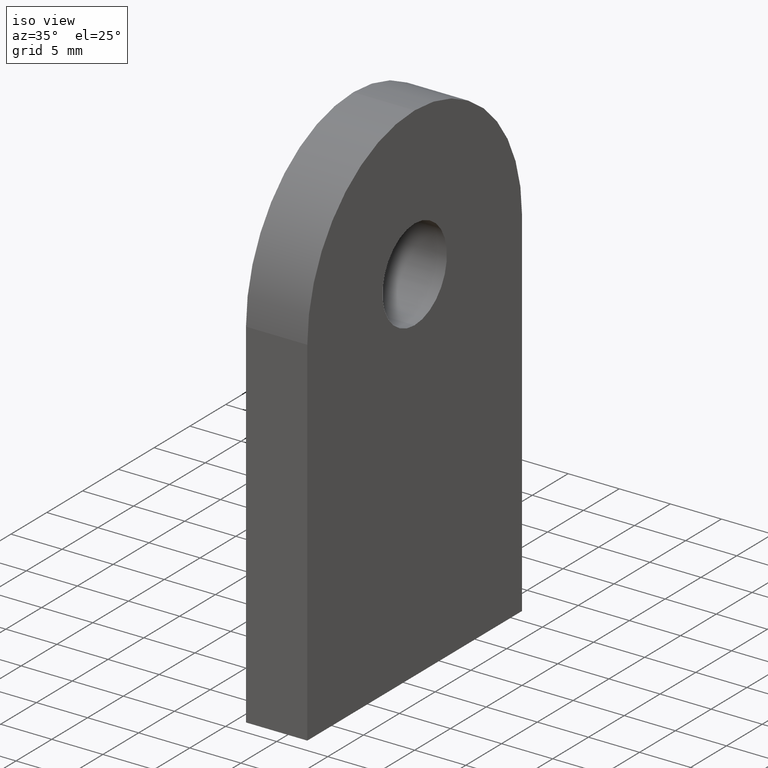
[diagram: clean part render]
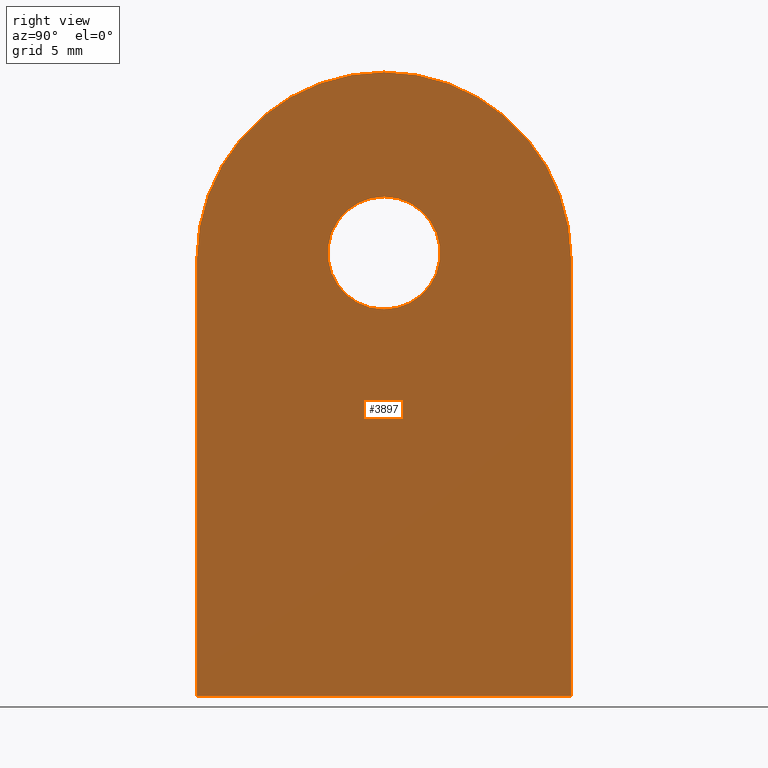
[diagram: tour spotlight — one face highlighted and labeled with its STEP entity id]
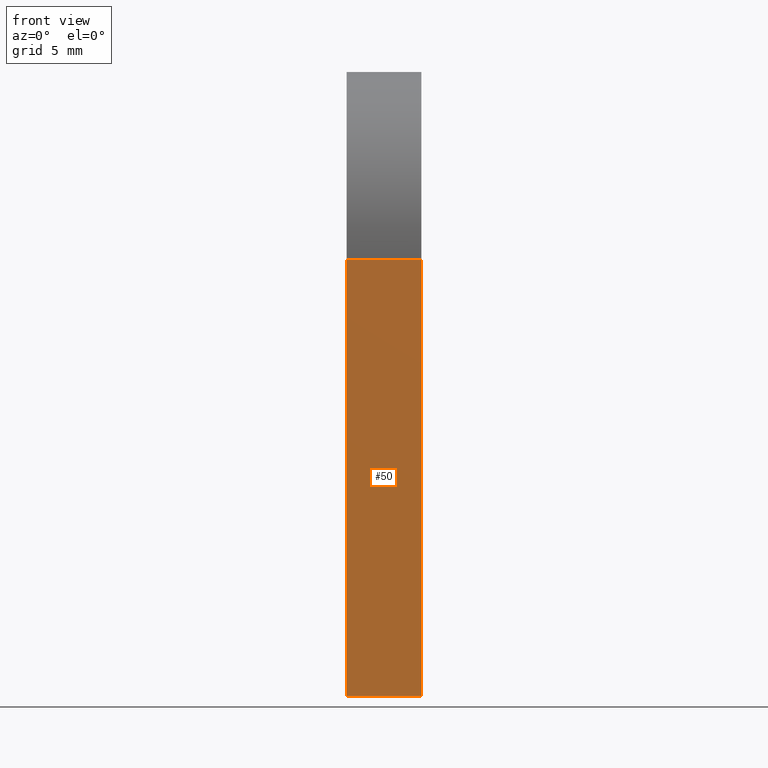
[diagram: tour spotlight — one face highlighted and labeled with its STEP entity id]
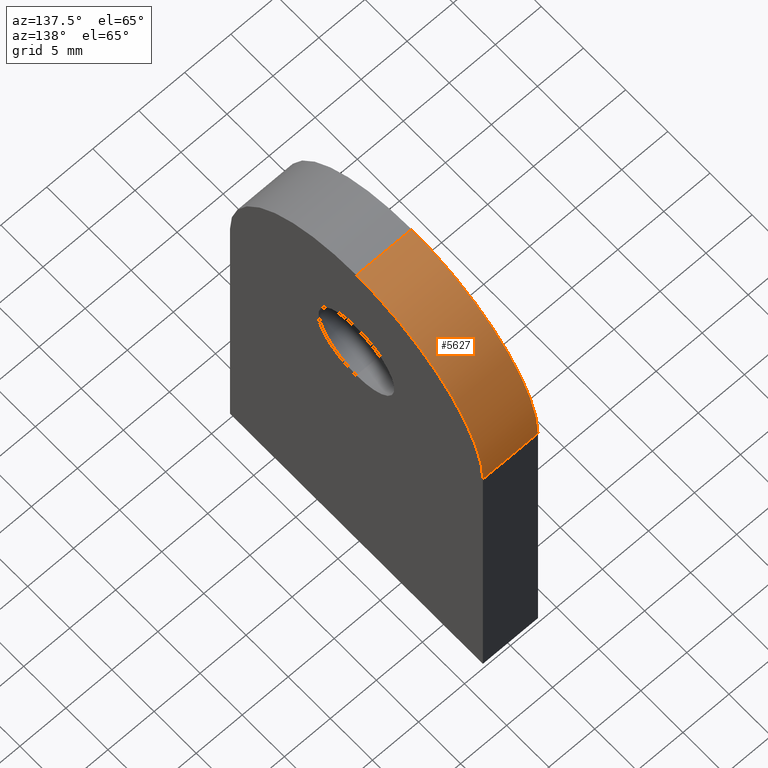
[diagram: tour spotlight — one face highlighted and labeled with its STEP entity id]
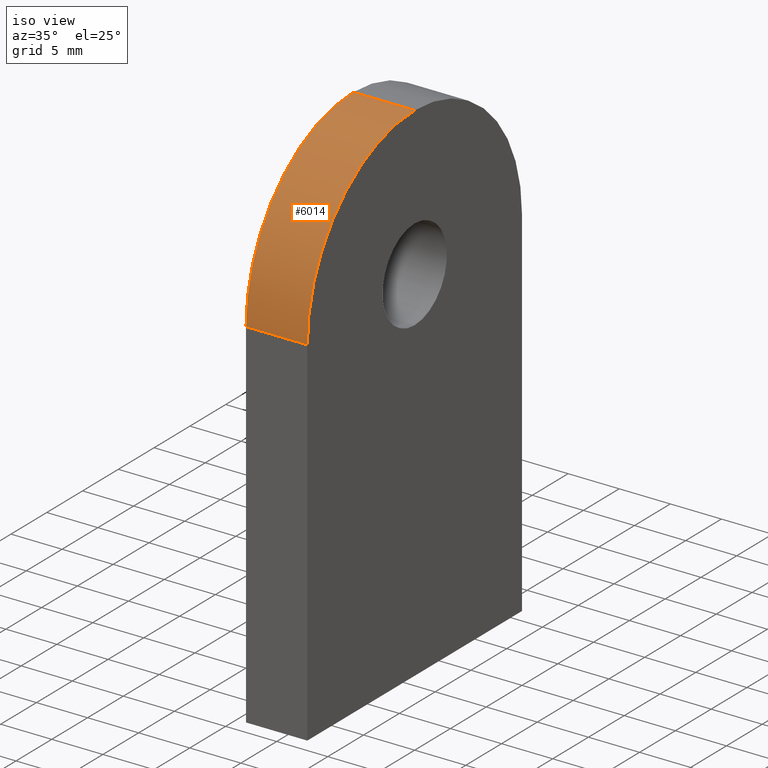
[diagram: tour spotlight — one face highlighted and labeled with its STEP entity id]
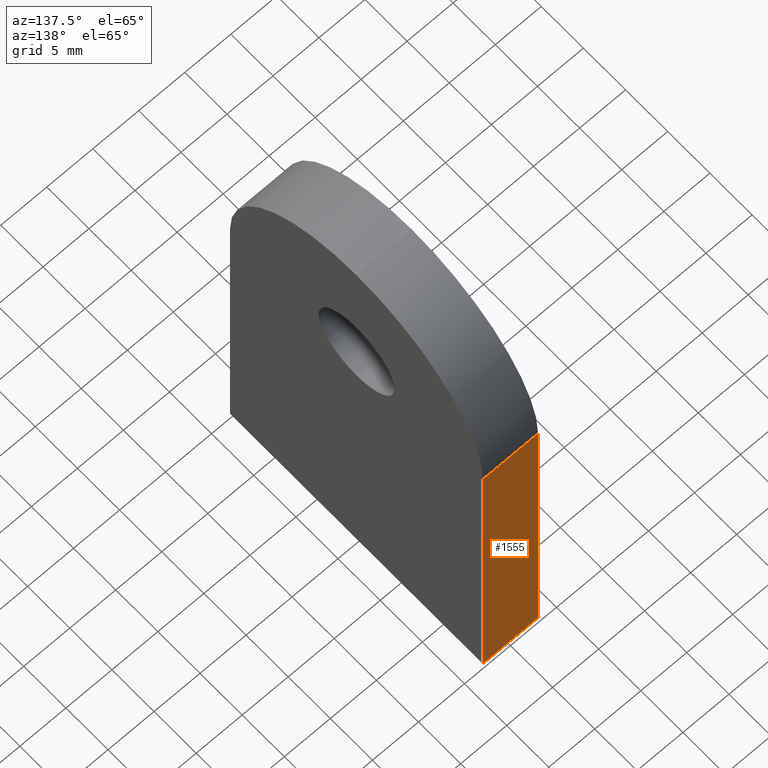
[diagram: tour spotlight — one face highlighted and labeled with its STEP entity id]
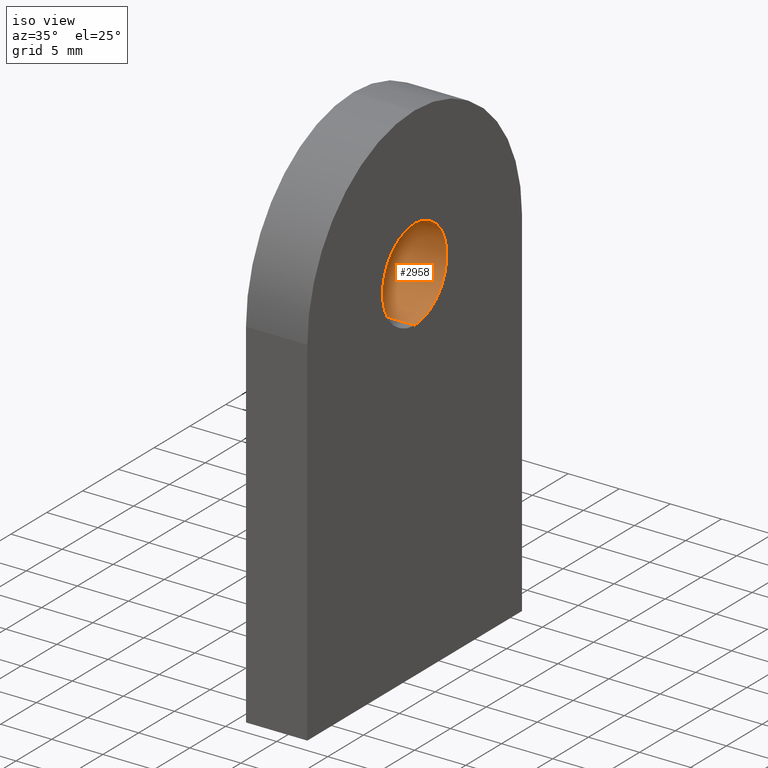
[diagram: tour spotlight — one face highlighted and labeled with its STEP entity id]
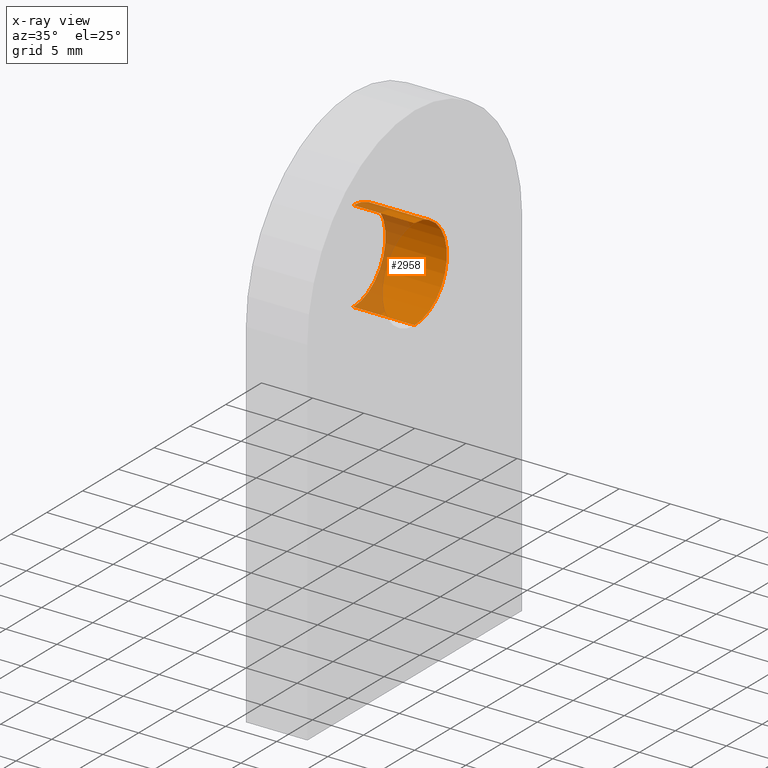
[diagram: x-ray of the same camera — body ghosted, this tour face saturated]
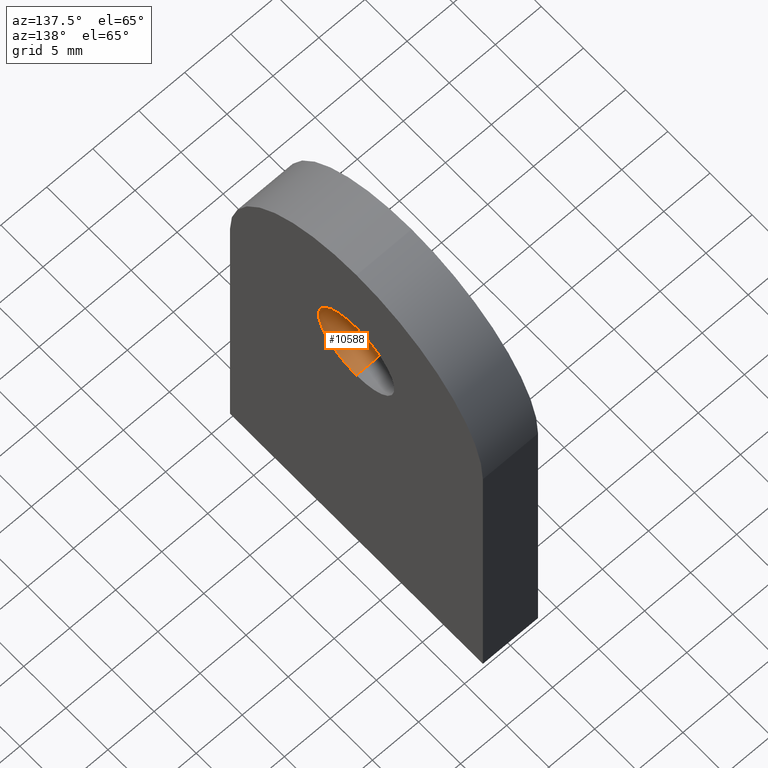
[diagram: tour spotlight — one face highlighted and labeled with its STEP entity id]
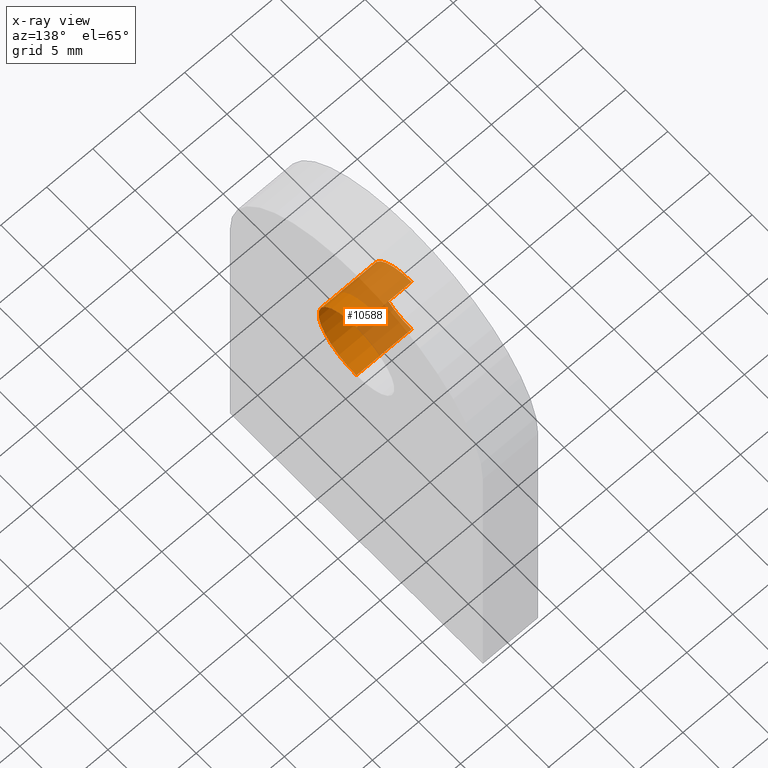
[diagram: x-ray of the same camera — body ghosted, this tour face saturated]
A machine part: a face-by-face anatomy tour. The part has 221 B-rep faces; the first image is the clean iso view, then the 7 largest visible faces are spotlighted one at a time (largest first), each with its STEP entity span.

Face 1 — right view, entity #3897. In plain terms, the highlighted planar face has unit normal (-1, -0, 0).
Definition (entity closure, byte-faithful):
#52 = ORIENTED_EDGE ( 'NONE', *, *, #1313, .F. ) ;
#72 = AXIS2_PLACEMENT_3D ( 'NONE', #8174, #9714, #1127 ) ;
#141 = CIRCLE ( 'NONE', #72, 15.00000000000000000 ) ;
#320 = FACE_OUTER_BOUND ( 'NONE', #8721, .T. ) ;
#353 = CARTESIAN_POINT ( 'NONE',  ( 3.000000000000000000, -15.00000000000000000, -3.061616997868383000E-015 ) ) ;
#519 = ORIENTED_EDGE ( 'NONE', *, *, #4190, .F. ) ;
#621 = EDGE_CURVE ( 'NONE', #5282, #6372, #1509, .T. ) ;
#688 = VECTOR ( 'NONE', #1922, 1000.000000000000000 ) ;
#778 = DIRECTION ( 'NONE',  ( -1.000000000000000000, -0.0000000000000000000, 0.0000000000000000000 ) ) ;
#818 = CARTESIAN_POINT ( 'NONE',  ( 3.000000000000000000, 0.0000000000000000000, 35.50000000000000000 ) ) ;
#1056 = VERTEX_POINT ( 'NONE', #353 ) ;
#1127 = DIRECTION ( 'NONE',  ( 0.0000000000000000000, 0.0000000000000000000, 1.000000000000000000 ) ) ;
#1313 = EDGE_CURVE ( 'NONE', #1056, #3963, #10699, .T. ) ;
#1509 = LINE ( 'NONE', #5525, #8283 ) ;
#1590 = CARTESIAN_POINT ( 'NONE',  ( 3.000000000000000000, 15.00000000000000000, -3.061616997868383000E-015 ) ) ;
#1677 = DIRECTION ( 'NONE',  ( 0.0000000000000000000, 0.0000000000000000000, -1.000000000000000000 ) ) ;
#1922 = DIRECTION ( 'NONE',  ( 0.0000000000000000000, -1.000000000000000000, 0.0000000000000000000 ) ) ;
#2026 = ORIENTED_EDGE ( 'NONE', *, *, #621, .F. ) ;
#2538 = VERTEX_POINT ( 'NONE', #7226 ) ;
#2830 = EDGE_LOOP ( 'NONE', ( #6158, #519 ) ) ;
#3373 = DIRECTION ( 'NONE',  ( 1.000000000000000000, 0.0000000000000000000, 0.0000000000000000000 ) ) ;
#3404 = AXIS2_PLACEMENT_3D ( 'NONE', #5268, #9653, #8832 ) ;
#3506 = CIRCLE ( 'NONE', #5547, 15.00000000000000000 ) ;
#3897 = ADVANCED_FACE ( 'NONE', ( #10624, #320 ), #8061, .F. ) ;
#3939 = AXIS2_PLACEMENT_3D ( 'NONE', #818, #3373, #6061 ) ;
#3963 = VERTEX_POINT ( 'NONE', #5025 ) ;
#4190 = EDGE_CURVE ( 'NONE', #6853, #2538, #7347, .T. ) ;
#4472 = EDGE_CURVE ( 'NONE', #9499, #5282, #3506, .T. ) ;
#4968 = CARTESIAN_POINT ( 'NONE',  ( 3.000000000000000000, 5.510910596163087600E-016, 40.00000000000000000 ) ) ;
#5025 = CARTESIAN_POINT ( 'NONE',  ( 3.000000000000000000, -14.99999999999999800, 34.99999999999999300 ) ) ;
#5268 = CARTESIAN_POINT ( 'NONE',  ( 3.000000000000000000, 0.0000000000000000000, 34.99999999999999300 ) ) ;
#5282 = VERTEX_POINT ( 'NONE', #9700 ) ;
#5328 = DIRECTION ( 'NONE',  ( 0.0000000000000000000, 4.956352788505163400E-017, 1.000000000000000000 ) ) ;
#5525 = CARTESIAN_POINT ( 'NONE',  ( 3.000000000000000000, 14.99999999999999800, 34.99999999999999300 ) ) ;
#5547 = AXIS2_PLACEMENT_3D ( 'NONE', #8823, #778, #8861 ) ;
#6047 = CARTESIAN_POINT ( 'NONE',  ( 3.000000000000000000, 0.0000000000000000000, 35.50000000000000000 ) ) ;
#6061 = DIRECTION ( 'NONE',  ( 0.0000000000000000000, 0.0000000000000000000, -1.000000000000000000 ) ) ;
#6096 = CARTESIAN_POINT ( 'NONE',  ( 3.000000000000000000, -15.00000000000000000, -3.061616997868383000E-015 ) ) ;
#6158 = ORIENTED_EDGE ( 'NONE', *, *, #6252, .F. ) ;
#6252 = EDGE_CURVE ( 'NONE', #2538, #6853, #7324, .T. ) ;
#6372 = VERTEX_POINT ( 'NONE', #1590 ) ;
#6757 = EDGE_CURVE ( 'NONE', #3963, #9499, #141, .T. ) ;
#6853 = VERTEX_POINT ( 'NONE', #4968 ) ;
#6887 = VECTOR ( 'NONE', #5328, 1000.000000000000000 ) ;
#6935 = AXIS2_PLACEMENT_3D ( 'NONE', #6047, #6965, #1677 ) ;
#6965 = DIRECTION ( 'NONE',  ( 1.000000000000000000, 0.0000000000000000000, 0.0000000000000000000 ) ) ;
#7027 = LINE ( 'NONE', #10667, #688 ) ;
#7226 = CARTESIAN_POINT ( 'NONE',  ( 3.000000000000000000, 0.0000000000000000000, 30.99999999999999600 ) ) ;
#7315 = ORIENTED_EDGE ( 'NONE', *, *, #7575, .F. ) ;
#7324 = CIRCLE ( 'NONE', #3939, 4.500000000000000900 ) ;
#7347 = CIRCLE ( 'NONE', #6935, 4.500000000000000900 ) ;
#7439 = DIRECTION ( 'NONE',  ( 0.0000000000000000000, 4.956352788505163400E-017, -1.000000000000000000 ) ) ;
#7575 = EDGE_CURVE ( 'NONE', #6372, #1056, #7027, .T. ) ;
#7725 = ORIENTED_EDGE ( 'NONE', *, *, #4472, .F. ) ;
#8061 = PLANE ( 'NONE',  #3404 ) ;
#8174 = CARTESIAN_POINT ( 'NONE',  ( 3.000000000000000000, 0.0000000000000000000, 34.99999999999999300 ) ) ;
#8283 = VECTOR ( 'NONE', #7439, 1000.000000000000000 ) ;
#8579 = ORIENTED_EDGE ( 'NONE', *, *, #6757, .F. ) ;
#8721 = EDGE_LOOP ( 'NONE', ( #8579, #52, #7315, #2026, #7725 ) ) ;
#8823 = CARTESIAN_POINT ( 'NONE',  ( 3.000000000000000000, 0.0000000000000000000, 34.99999999999999300 ) ) ;
#8832 = DIRECTION ( 'NONE',  ( 0.0000000000000000000, 0.0000000000000000000, 1.000000000000000000 ) ) ;
#8861 = DIRECTION ( 'NONE',  ( 0.0000000000000000000, 0.0000000000000000000, 1.000000000000000000 ) ) ;
#9499 = VERTEX_POINT ( 'NONE', #10049 ) ;
#9653 = DIRECTION ( 'NONE',  ( -1.000000000000000000, -0.0000000000000000000, 0.0000000000000000000 ) ) ;
#9700 = CARTESIAN_POINT ( 'NONE',  ( 3.000000000000000000, 14.99999999999999800, 34.99999999999999300 ) ) ;
#9714 = DIRECTION ( 'NONE',  ( -1.000000000000000000, -0.0000000000000000000, 0.0000000000000000000 ) ) ;
#10049 = CARTESIAN_POINT ( 'NONE',  ( 3.000000000000000000, 0.0000000000000000000, 49.99999999999999300 ) ) ;
#10624 = FACE_BOUND ( 'NONE', #2830, .T. ) ;
#10667 = CARTESIAN_POINT ( 'NONE',  ( 3.000000000000000000, 15.00000000000000000, -3.061616997868383000E-015 ) ) ;
#10699 = LINE ( 'NONE', #6096, #6887 ) ;

Face 2 — front view, entity #50. In plain terms, the highlighted planar face has unit normal (0, -1, 0).
Definition (entity closure, byte-faithful):
#50 = ADVANCED_FACE ( 'NONE', ( #6505 ), #8259, .T. ) ;
#353 = CARTESIAN_POINT ( 'NONE',  ( 3.000000000000000000, -15.00000000000000000, -3.061616997868383000E-015 ) ) ;
#580 = EDGE_LOOP ( 'NONE', ( #10682, #3652, #10612, #9301 ) ) ;
#1056 = VERTEX_POINT ( 'NONE', #353 ) ;
#1313 = EDGE_CURVE ( 'NONE', #1056, #3963, #10699, .T. ) ;
#1398 = VERTEX_POINT ( 'NONE', #7313 ) ;
#1548 = LINE ( 'NONE', #9595, #10339 ) ;
#1622 = LINE ( 'NONE', #5283, #9314 ) ;
#1821 = AXIS2_PLACEMENT_3D ( 'NONE', #3836, #7282, #4731 ) ;
#2793 = CARTESIAN_POINT ( 'NONE',  ( -3.000000000000000000, -14.99999999999999800, 34.99999999999999300 ) ) ;
#3438 = VECTOR ( 'NONE', #4605, 1000.000000000000000 ) ;
#3561 = VERTEX_POINT ( 'NONE', #2793 ) ;
#3652 = ORIENTED_EDGE ( 'NONE', *, *, #5233, .F. ) ;
#3836 = CARTESIAN_POINT ( 'NONE',  ( 3.000000000000000000, -15.00000000000000000, -3.061616997868383000E-015 ) ) ;
#3963 = VERTEX_POINT ( 'NONE', #5025 ) ;
#4362 = DIRECTION ( 'NONE',  ( -1.000000000000000000, -0.0000000000000000000, -0.0000000000000000000 ) ) ;
#4565 = CARTESIAN_POINT ( 'NONE',  ( 3.000000000000000000, -14.99999999999999800, 34.99999999999999300 ) ) ;
#4605 = DIRECTION ( 'NONE',  ( -1.000000000000000000, -0.0000000000000000000, -0.0000000000000000000 ) ) ;
#4731 = DIRECTION ( 'NONE',  ( 0.0000000000000000000, -4.956352788505162800E-017, -1.000000000000000000 ) ) ;
#5025 = CARTESIAN_POINT ( 'NONE',  ( 3.000000000000000000, -14.99999999999999800, 34.99999999999999300 ) ) ;
#5233 = EDGE_CURVE ( 'NONE', #1056, #1398, #1548, .T. ) ;
#5283 = CARTESIAN_POINT ( 'NONE',  ( -3.000000000000000000, -15.00000000000000000, -3.061616997868383000E-015 ) ) ;
#5328 = DIRECTION ( 'NONE',  ( 0.0000000000000000000, 4.956352788505163400E-017, 1.000000000000000000 ) ) ;
#6096 = CARTESIAN_POINT ( 'NONE',  ( 3.000000000000000000, -15.00000000000000000, -3.061616997868383000E-015 ) ) ;
#6505 = FACE_OUTER_BOUND ( 'NONE', #580, .T. ) ;
#6887 = VECTOR ( 'NONE', #5328, 1000.000000000000000 ) ;
#7282 = DIRECTION ( 'NONE',  ( 0.0000000000000000000, -1.000000000000000000, 4.956352788505162800E-017 ) ) ;
#7313 = CARTESIAN_POINT ( 'NONE',  ( -3.000000000000000000, -15.00000000000000000, -3.061616997868383000E-015 ) ) ;
#8259 = PLANE ( 'NONE',  #1821 ) ;
#9064 = LINE ( 'NONE', #4565, #3438 ) ;
#9301 = ORIENTED_EDGE ( 'NONE', *, *, #10202, .T. ) ;
#9314 = VECTOR ( 'NONE', #11371, 1000.000000000000000 ) ;
#9595 = CARTESIAN_POINT ( 'NONE',  ( 3.000000000000000000, -15.00000000000000000, -3.061616997868383000E-015 ) ) ;
#10202 = EDGE_CURVE ( 'NONE', #3963, #3561, #9064, .T. ) ;
#10339 = VECTOR ( 'NONE', #4362, 1000.000000000000000 ) ;
#10427 = EDGE_CURVE ( 'NONE', #1398, #3561, #1622, .T. ) ;
#10612 = ORIENTED_EDGE ( 'NONE', *, *, #1313, .T. ) ;
#10682 = ORIENTED_EDGE ( 'NONE', *, *, #10427, .F. ) ;
#10699 = LINE ( 'NONE', #6096, #6887 ) ;
#11371 = DIRECTION ( 'NONE',  ( 0.0000000000000000000, 4.956352788505163400E-017, 1.000000000000000000 ) ) ;

Face 3 — auxiliary view, entity #5627. In plain terms, the highlighted cylindrical surface (partial cylindrical patch) has radius 15 mm, axis along (-1, -0, -0).
Definition (entity closure, byte-faithful):
#360 = CARTESIAN_POINT ( 'NONE',  ( 3.000000000000000000, 14.99999999999999800, 34.99999999999999300 ) ) ;
#681 = DIRECTION ( 'NONE',  ( -1.000000000000000000, -0.0000000000000000000, -0.0000000000000000000 ) ) ;
#778 = DIRECTION ( 'NONE',  ( -1.000000000000000000, -0.0000000000000000000, 0.0000000000000000000 ) ) ;
#1973 = VECTOR ( 'NONE', #11272, 1000.000000000000000 ) ;
#2870 = DIRECTION ( 'NONE',  ( -1.000000000000000000, -0.0000000000000000000, 0.0000000000000000000 ) ) ;
#3205 = DIRECTION ( 'NONE',  ( -1.000000000000000000, -0.0000000000000000000, -0.0000000000000000000 ) ) ;
#3506 = CIRCLE ( 'NONE', #5547, 15.00000000000000000 ) ;
#3895 = CIRCLE ( 'NONE', #9639, 15.00000000000000000 ) ;
#4091 = EDGE_CURVE ( 'NONE', #9499, #5758, #7897, .T. ) ;
#4244 = CARTESIAN_POINT ( 'NONE',  ( 3.000000000000000000, 0.0000000000000000000, 49.99999999999999300 ) ) ;
#4472 = EDGE_CURVE ( 'NONE', #9499, #5282, #3506, .T. ) ;
#4508 = CARTESIAN_POINT ( 'NONE',  ( -3.000000000000000000, 0.0000000000000000000, 49.99999999999999300 ) ) ;
#4553 = VERTEX_POINT ( 'NONE', #7978 ) ;
#4656 = DIRECTION ( 'NONE',  ( 0.0000000000000000000, 0.0000000000000000000, 1.000000000000000000 ) ) ;
#4832 = CARTESIAN_POINT ( 'NONE',  ( 3.000000000000000000, 0.0000000000000000000, 34.99999999999999300 ) ) ;
#5282 = VERTEX_POINT ( 'NONE', #9700 ) ;
#5410 = FACE_OUTER_BOUND ( 'NONE', #9135, .T. ) ;
#5547 = AXIS2_PLACEMENT_3D ( 'NONE', #8823, #778, #8861 ) ;
#5627 = ADVANCED_FACE ( 'NONE', ( #5410 ), #7185, .T. ) ;
#5748 = DIRECTION ( 'NONE',  ( 0.0000000000000000000, 0.0000000000000000000, 1.000000000000000000 ) ) ;
#5758 = VERTEX_POINT ( 'NONE', #4508 ) ;
#5922 = AXIS2_PLACEMENT_3D ( 'NONE', #4832, #3205, #5748 ) ;
#5971 = EDGE_CURVE ( 'NONE', #5758, #4553, #3895, .T. ) ;
#6891 = ORIENTED_EDGE ( 'NONE', *, *, #7788, .T. ) ;
#7185 = CYLINDRICAL_SURFACE ( 'NONE', #5922, 15.00000000000000000 ) ;
#7366 = CARTESIAN_POINT ( 'NONE',  ( -3.000000000000000000, 0.0000000000000000000, 34.99999999999999300 ) ) ;
#7710 = LINE ( 'NONE', #360, #7830 ) ;
#7719 = ORIENTED_EDGE ( 'NONE', *, *, #4091, .F. ) ;
#7788 = EDGE_CURVE ( 'NONE', #5282, #4553, #7710, .T. ) ;
#7830 = VECTOR ( 'NONE', #681, 1000.000000000000000 ) ;
#7897 = LINE ( 'NONE', #4244, #1973 ) ;
#7978 = CARTESIAN_POINT ( 'NONE',  ( -3.000000000000000000, 14.99999999999999800, 34.99999999999999300 ) ) ;
#8823 = CARTESIAN_POINT ( 'NONE',  ( 3.000000000000000000, 0.0000000000000000000, 34.99999999999999300 ) ) ;
#8861 = DIRECTION ( 'NONE',  ( 0.0000000000000000000, 0.0000000000000000000, 1.000000000000000000 ) ) ;
#9135 = EDGE_LOOP ( 'NONE', ( #7719, #10598, #6891, #9583 ) ) ;
#9499 = VERTEX_POINT ( 'NONE', #10049 ) ;
#9583 = ORIENTED_EDGE ( 'NONE', *, *, #5971, .F. ) ;
#9639 = AXIS2_PLACEMENT_3D ( 'NONE', #7366, #2870, #4656 ) ;
#9700 = CARTESIAN_POINT ( 'NONE',  ( 3.000000000000000000, 14.99999999999999800, 34.99999999999999300 ) ) ;
#10049 = CARTESIAN_POINT ( 'NONE',  ( 3.000000000000000000, 0.0000000000000000000, 49.99999999999999300 ) ) ;
#10598 = ORIENTED_EDGE ( 'NONE', *, *, #4472, .T. ) ;
#11272 = DIRECTION ( 'NONE',  ( -1.000000000000000000, -0.0000000000000000000, -0.0000000000000000000 ) ) ;

Face 4 — iso view, entity #6014. In plain terms, the highlighted cylindrical surface (partial cylindrical patch) has radius 15 mm, axis along (-1, -0, -0).
Definition (entity closure, byte-faithful):
#72 = AXIS2_PLACEMENT_3D ( 'NONE', #8174, #9714, #1127 ) ;
#141 = CIRCLE ( 'NONE', #72, 15.00000000000000000 ) ;
#192 = DIRECTION ( 'NONE',  ( 0.0000000000000000000, 0.0000000000000000000, 1.000000000000000000 ) ) ;
#686 = CARTESIAN_POINT ( 'NONE',  ( -3.000000000000000000, 0.0000000000000000000, 34.99999999999999300 ) ) ;
#1127 = DIRECTION ( 'NONE',  ( 0.0000000000000000000, 0.0000000000000000000, 1.000000000000000000 ) ) ;
#1175 = DIRECTION ( 'NONE',  ( -1.000000000000000000, -0.0000000000000000000, -0.0000000000000000000 ) ) ;
#1973 = VECTOR ( 'NONE', #11272, 1000.000000000000000 ) ;
#2793 = CARTESIAN_POINT ( 'NONE',  ( -3.000000000000000000, -14.99999999999999800, 34.99999999999999300 ) ) ;
#3438 = VECTOR ( 'NONE', #4605, 1000.000000000000000 ) ;
#3561 = VERTEX_POINT ( 'NONE', #2793 ) ;
#3963 = VERTEX_POINT ( 'NONE', #5025 ) ;
#4091 = EDGE_CURVE ( 'NONE', #9499, #5758, #7897, .T. ) ;
#4244 = CARTESIAN_POINT ( 'NONE',  ( 3.000000000000000000, 0.0000000000000000000, 49.99999999999999300 ) ) ;
#4508 = CARTESIAN_POINT ( 'NONE',  ( -3.000000000000000000, 0.0000000000000000000, 49.99999999999999300 ) ) ;
#4565 = CARTESIAN_POINT ( 'NONE',  ( 3.000000000000000000, -14.99999999999999800, 34.99999999999999300 ) ) ;
#4605 = DIRECTION ( 'NONE',  ( -1.000000000000000000, -0.0000000000000000000, -0.0000000000000000000 ) ) ;
#5025 = CARTESIAN_POINT ( 'NONE',  ( 3.000000000000000000, -14.99999999999999800, 34.99999999999999300 ) ) ;
#5758 = VERTEX_POINT ( 'NONE', #4508 ) ;
#6014 = ADVANCED_FACE ( 'NONE', ( #7052 ), #8437, .T. ) ;
#6452 = CARTESIAN_POINT ( 'NONE',  ( 3.000000000000000000, 0.0000000000000000000, 34.99999999999999300 ) ) ;
#6757 = EDGE_CURVE ( 'NONE', #3963, #9499, #141, .T. ) ;
#7052 = FACE_OUTER_BOUND ( 'NONE', #7404, .T. ) ;
#7073 = ORIENTED_EDGE ( 'NONE', *, *, #10202, .F. ) ;
#7404 = EDGE_LOOP ( 'NONE', ( #9777, #7955, #9921, #7073 ) ) ;
#7897 = LINE ( 'NONE', #4244, #1973 ) ;
#7955 = ORIENTED_EDGE ( 'NONE', *, *, #4091, .T. ) ;
#8174 = CARTESIAN_POINT ( 'NONE',  ( 3.000000000000000000, 0.0000000000000000000, 34.99999999999999300 ) ) ;
#8437 = CYLINDRICAL_SURFACE ( 'NONE', #10440, 15.00000000000000000 ) ;
#8580 = DIRECTION ( 'NONE',  ( 0.0000000000000000000, 0.0000000000000000000, 1.000000000000000000 ) ) ;
#9064 = LINE ( 'NONE', #4565, #3438 ) ;
#9289 = DIRECTION ( 'NONE',  ( -1.000000000000000000, -0.0000000000000000000, 0.0000000000000000000 ) ) ;
#9499 = VERTEX_POINT ( 'NONE', #10049 ) ;
#9714 = DIRECTION ( 'NONE',  ( -1.000000000000000000, -0.0000000000000000000, 0.0000000000000000000 ) ) ;
#9740 = AXIS2_PLACEMENT_3D ( 'NONE', #686, #9289, #8580 ) ;
#9777 = ORIENTED_EDGE ( 'NONE', *, *, #6757, .T. ) ;
#9921 = ORIENTED_EDGE ( 'NONE', *, *, #10329, .F. ) ;
#10005 = CIRCLE ( 'NONE', #9740, 15.00000000000000000 ) ;
#10049 = CARTESIAN_POINT ( 'NONE',  ( 3.000000000000000000, 0.0000000000000000000, 49.99999999999999300 ) ) ;
#10202 = EDGE_CURVE ( 'NONE', #3963, #3561, #9064, .T. ) ;
#10329 = EDGE_CURVE ( 'NONE', #3561, #5758, #10005, .T. ) ;
#10440 = AXIS2_PLACEMENT_3D ( 'NONE', #6452, #1175, #192 ) ;
#11272 = DIRECTION ( 'NONE',  ( -1.000000000000000000, -0.0000000000000000000, -0.0000000000000000000 ) ) ;

Face 5 — auxiliary view, entity #1555. In plain terms, the highlighted planar face has unit normal (-0, 1, 0).
Definition (entity closure, byte-faithful):
#22 = DIRECTION ( 'NONE',  ( -0.0000000000000000000, 1.000000000000000000, 4.956352788505162800E-017 ) ) ;
#360 = CARTESIAN_POINT ( 'NONE',  ( 3.000000000000000000, 14.99999999999999800, 34.99999999999999300 ) ) ;
#621 = EDGE_CURVE ( 'NONE', #5282, #6372, #1509, .T. ) ;
#681 = DIRECTION ( 'NONE',  ( -1.000000000000000000, -0.0000000000000000000, -0.0000000000000000000 ) ) ;
#943 = DIRECTION ( 'NONE',  ( 0.0000000000000000000, 4.956352788505163400E-017, -1.000000000000000000 ) ) ;
#1270 = VECTOR ( 'NONE', #8296, 1000.000000000000000 ) ;
#1509 = LINE ( 'NONE', #5525, #8283 ) ;
#1555 = ADVANCED_FACE ( 'NONE', ( #6624 ), #10510, .T. ) ;
#1590 = CARTESIAN_POINT ( 'NONE',  ( 3.000000000000000000, 15.00000000000000000, -3.061616997868383000E-015 ) ) ;
#2262 = ORIENTED_EDGE ( 'NONE', *, *, #6178, .T. ) ;
#2929 = LINE ( 'NONE', #7547, #1270 ) ;
#3457 = ORIENTED_EDGE ( 'NONE', *, *, #621, .T. ) ;
#4381 = CARTESIAN_POINT ( 'NONE',  ( -3.000000000000000000, 14.99999999999999800, 34.99999999999999300 ) ) ;
#4391 = CARTESIAN_POINT ( 'NONE',  ( 3.000000000000000000, 14.99999999999999800, 34.99999999999999300 ) ) ;
#4553 = VERTEX_POINT ( 'NONE', #7978 ) ;
#5282 = VERTEX_POINT ( 'NONE', #9700 ) ;
#5525 = CARTESIAN_POINT ( 'NONE',  ( 3.000000000000000000, 14.99999999999999800, 34.99999999999999300 ) ) ;
#5726 = EDGE_LOOP ( 'NONE', ( #10863, #10314, #3457, #2262 ) ) ;
#6178 = EDGE_CURVE ( 'NONE', #6372, #10886, #2929, .T. ) ;
#6372 = VERTEX_POINT ( 'NONE', #1590 ) ;
#6605 = VECTOR ( 'NONE', #943, 1000.000000000000000 ) ;
#6624 = FACE_OUTER_BOUND ( 'NONE', #5726, .T. ) ;
#6871 = CARTESIAN_POINT ( 'NONE',  ( -3.000000000000000000, 15.00000000000000000, -3.061616997868383000E-015 ) ) ;
#7439 = DIRECTION ( 'NONE',  ( 0.0000000000000000000, 4.956352788505163400E-017, -1.000000000000000000 ) ) ;
#7547 = CARTESIAN_POINT ( 'NONE',  ( 3.000000000000000000, 15.00000000000000000, -3.061616997868383000E-015 ) ) ;
#7710 = LINE ( 'NONE', #360, #7830 ) ;
#7788 = EDGE_CURVE ( 'NONE', #5282, #4553, #7710, .T. ) ;
#7830 = VECTOR ( 'NONE', #681, 1000.000000000000000 ) ;
#7978 = CARTESIAN_POINT ( 'NONE',  ( -3.000000000000000000, 14.99999999999999800, 34.99999999999999300 ) ) ;
#8283 = VECTOR ( 'NONE', #7439, 1000.000000000000000 ) ;
#8296 = DIRECTION ( 'NONE',  ( -1.000000000000000000, -0.0000000000000000000, -0.0000000000000000000 ) ) ;
#8725 = EDGE_CURVE ( 'NONE', #4553, #10886, #8924, .T. ) ;
#8924 = LINE ( 'NONE', #4381, #6605 ) ;
#9192 = AXIS2_PLACEMENT_3D ( 'NONE', #4391, #22, #9587 ) ;
#9587 = DIRECTION ( 'NONE',  ( 0.0000000000000000000, -4.956352788505162800E-017, 1.000000000000000000 ) ) ;
#9700 = CARTESIAN_POINT ( 'NONE',  ( 3.000000000000000000, 14.99999999999999800, 34.99999999999999300 ) ) ;
#10314 = ORIENTED_EDGE ( 'NONE', *, *, #7788, .F. ) ;
#10510 = PLANE ( 'NONE',  #9192 ) ;
#10863 = ORIENTED_EDGE ( 'NONE', *, *, #8725, .F. ) ;
#10886 = VERTEX_POINT ( 'NONE', #6871 ) ;

Face 6 — iso view, entity #2958. An x-ray twin of the same camera follows (body ghosted, this face saturated) — the face is partly hidden behind the body. In plain terms, the highlighted cylindrical surface (partial cylindrical patch) has radius 4.5 mm, axis along (1, -0, -0).
Definition (entity closure, byte-faithful):
#155 = VECTOR ( 'NONE', #2225, 1000.000000000000000 ) ;
#782 = DIRECTION ( 'NONE',  ( 0.0000000000000000000, 0.0000000000000000000, -1.000000000000000000 ) ) ;
#818 = CARTESIAN_POINT ( 'NONE',  ( 3.000000000000000000, 0.0000000000000000000, 35.50000000000000000 ) ) ;
#872 = EDGE_CURVE ( 'NONE', #3379, #6853, #11124, .T. ) ;
#992 = LINE ( 'NONE', #3167, #155 ) ;
#1223 = FACE_OUTER_BOUND ( 'NONE', #7599, .T. ) ;
#1712 = ORIENTED_EDGE ( 'NONE', *, *, #872, .F. ) ;
#1721 = AXIS2_PLACEMENT_3D ( 'NONE', #5938, #8577, #10357 ) ;
#1890 = CIRCLE ( 'NONE', #1721, 4.500000000000000900 ) ;
#2225 = DIRECTION ( 'NONE',  ( 1.000000000000000000, -0.0000000000000000000, -0.0000000000000000000 ) ) ;
#2538 = VERTEX_POINT ( 'NONE', #7226 ) ;
#2958 = ADVANCED_FACE ( 'NONE', ( #1223 ), #9452, .F. ) ;
#3167 = CARTESIAN_POINT ( 'NONE',  ( -3.000000000000000000, 0.0000000000000000000, 30.99999999999999600 ) ) ;
#3373 = DIRECTION ( 'NONE',  ( 1.000000000000000000, 0.0000000000000000000, 0.0000000000000000000 ) ) ;
#3379 = VERTEX_POINT ( 'NONE', #4113 ) ;
#3837 = VERTEX_POINT ( 'NONE', #4228 ) ;
#3939 = AXIS2_PLACEMENT_3D ( 'NONE', #818, #3373, #6061 ) ;
#4113 = CARTESIAN_POINT ( 'NONE',  ( -3.000000000000000000, 5.510910596163087600E-016, 40.00000000000000000 ) ) ;
#4228 = CARTESIAN_POINT ( 'NONE',  ( -3.000000000000000000, 0.0000000000000000000, 30.99999999999999600 ) ) ;
#4968 = CARTESIAN_POINT ( 'NONE',  ( 3.000000000000000000, 5.510910596163087600E-016, 40.00000000000000000 ) ) ;
#5671 = EDGE_CURVE ( 'NONE', #3837, #2538, #992, .T. ) ;
#5705 = ORIENTED_EDGE ( 'NONE', *, *, #5671, .T. ) ;
#5938 = CARTESIAN_POINT ( 'NONE',  ( -3.000000000000000000, 0.0000000000000000000, 35.50000000000000000 ) ) ;
#6061 = DIRECTION ( 'NONE',  ( 0.0000000000000000000, 0.0000000000000000000, -1.000000000000000000 ) ) ;
#6217 = CARTESIAN_POINT ( 'NONE',  ( -3.000000000000000000, 0.0000000000000000000, 35.50000000000000000 ) ) ;
#6252 = EDGE_CURVE ( 'NONE', #2538, #6853, #7324, .T. ) ;
#6817 = ORIENTED_EDGE ( 'NONE', *, *, #11263, .F. ) ;
#6853 = VERTEX_POINT ( 'NONE', #4968 ) ;
#7010 = CARTESIAN_POINT ( 'NONE',  ( -3.000000000000000000, 5.510910596163090500E-016, 40.00000000000000000 ) ) ;
#7191 = DIRECTION ( 'NONE',  ( 1.000000000000000000, -0.0000000000000000000, -0.0000000000000000000 ) ) ;
#7226 = CARTESIAN_POINT ( 'NONE',  ( 3.000000000000000000, 0.0000000000000000000, 30.99999999999999600 ) ) ;
#7324 = CIRCLE ( 'NONE', #3939, 4.500000000000000900 ) ;
#7587 = AXIS2_PLACEMENT_3D ( 'NONE', #6217, #7979, #782 ) ;
#7599 = EDGE_LOOP ( 'NONE', ( #1712, #6817, #5705, #8420 ) ) ;
#7979 = DIRECTION ( 'NONE',  ( 1.000000000000000000, -0.0000000000000000000, -0.0000000000000000000 ) ) ;
#8420 = ORIENTED_EDGE ( 'NONE', *, *, #6252, .T. ) ;
#8549 = VECTOR ( 'NONE', #7191, 1000.000000000000000 ) ;
#8577 = DIRECTION ( 'NONE',  ( 1.000000000000000000, 0.0000000000000000000, 0.0000000000000000000 ) ) ;
#9452 = CYLINDRICAL_SURFACE ( 'NONE', #7587, 4.500000000000000900 ) ;
#10357 = DIRECTION ( 'NONE',  ( 0.0000000000000000000, 0.0000000000000000000, -1.000000000000000000 ) ) ;
#11124 = LINE ( 'NONE', #7010, #8549 ) ;
#11263 = EDGE_CURVE ( 'NONE', #3837, #3379, #1890, .T. ) ;

Face 7 — auxiliary view, entity #10588. An x-ray twin of the same camera follows (body ghosted, this face saturated) — the face is partly hidden behind the body. In plain terms, the highlighted cylindrical surface (partial cylindrical patch) has radius 4.5 mm, axis along (1, -0, -0).
Definition (entity closure, byte-faithful):
#155 = VECTOR ( 'NONE', #2225, 1000.000000000000000 ) ;
#747 = ORIENTED_EDGE ( 'NONE', *, *, #4190, .T. ) ;
#872 = EDGE_CURVE ( 'NONE', #3379, #6853, #11124, .T. ) ;
#992 = LINE ( 'NONE', #3167, #155 ) ;
#1221 = CARTESIAN_POINT ( 'NONE',  ( -3.000000000000000000, 0.0000000000000000000, 35.50000000000000000 ) ) ;
#1677 = DIRECTION ( 'NONE',  ( 0.0000000000000000000, 0.0000000000000000000, -1.000000000000000000 ) ) ;
#2225 = DIRECTION ( 'NONE',  ( 1.000000000000000000, -0.0000000000000000000, -0.0000000000000000000 ) ) ;
#2312 = FACE_OUTER_BOUND ( 'NONE', #9998, .T. ) ;
#2388 = ORIENTED_EDGE ( 'NONE', *, *, #872, .T. ) ;
#2538 = VERTEX_POINT ( 'NONE', #7226 ) ;
#3149 = DIRECTION ( 'NONE',  ( 0.0000000000000000000, 0.0000000000000000000, -1.000000000000000000 ) ) ;
#3167 = CARTESIAN_POINT ( 'NONE',  ( -3.000000000000000000, 0.0000000000000000000, 30.99999999999999600 ) ) ;
#3379 = VERTEX_POINT ( 'NONE', #4113 ) ;
#3480 = ORIENTED_EDGE ( 'NONE', *, *, #5671, .F. ) ;
#3837 = VERTEX_POINT ( 'NONE', #4228 ) ;
#4113 = CARTESIAN_POINT ( 'NONE',  ( -3.000000000000000000, 5.510910596163087600E-016, 40.00000000000000000 ) ) ;
#4190 = EDGE_CURVE ( 'NONE', #6853, #2538, #7347, .T. ) ;
#4228 = CARTESIAN_POINT ( 'NONE',  ( -3.000000000000000000, 0.0000000000000000000, 30.99999999999999600 ) ) ;
#4968 = CARTESIAN_POINT ( 'NONE',  ( 3.000000000000000000, 5.510910596163087600E-016, 40.00000000000000000 ) ) ;
#5671 = EDGE_CURVE ( 'NONE', #3837, #2538, #992, .T. ) ;
#5913 = CYLINDRICAL_SURFACE ( 'NONE', #11132, 4.500000000000000900 ) ;
#6047 = CARTESIAN_POINT ( 'NONE',  ( 3.000000000000000000, 0.0000000000000000000, 35.50000000000000000 ) ) ;
#6545 = DIRECTION ( 'NONE',  ( 1.000000000000000000, -0.0000000000000000000, -0.0000000000000000000 ) ) ;
#6853 = VERTEX_POINT ( 'NONE', #4968 ) ;
#6935 = AXIS2_PLACEMENT_3D ( 'NONE', #6047, #6965, #1677 ) ;
#6965 = DIRECTION ( 'NONE',  ( 1.000000000000000000, 0.0000000000000000000, 0.0000000000000000000 ) ) ;
#7010 = CARTESIAN_POINT ( 'NONE',  ( -3.000000000000000000, 5.510910596163090500E-016, 40.00000000000000000 ) ) ;
#7191 = DIRECTION ( 'NONE',  ( 1.000000000000000000, -0.0000000000000000000, -0.0000000000000000000 ) ) ;
#7226 = CARTESIAN_POINT ( 'NONE',  ( 3.000000000000000000, 0.0000000000000000000, 30.99999999999999600 ) ) ;
#7299 = CIRCLE ( 'NONE', #10163, 4.500000000000000900 ) ;
#7344 = EDGE_CURVE ( 'NONE', #3379, #3837, #7299, .T. ) ;
#7347 = CIRCLE ( 'NONE', #6935, 4.500000000000000900 ) ;
#8549 = VECTOR ( 'NONE', #7191, 1000.000000000000000 ) ;
#8905 = ORIENTED_EDGE ( 'NONE', *, *, #7344, .F. ) ;
#9094 = DIRECTION ( 'NONE',  ( 0.0000000000000000000, 0.0000000000000000000, -1.000000000000000000 ) ) ;
#9298 = DIRECTION ( 'NONE',  ( 1.000000000000000000, 0.0000000000000000000, 0.0000000000000000000 ) ) ;
#9998 = EDGE_LOOP ( 'NONE', ( #8905, #2388, #747, #3480 ) ) ;
#10163 = AXIS2_PLACEMENT_3D ( 'NONE', #11066, #9298, #3149 ) ;
#10588 = ADVANCED_FACE ( 'NONE', ( #2312 ), #5913, .F. ) ;
#11066 = CARTESIAN_POINT ( 'NONE',  ( -3.000000000000000000, 0.0000000000000000000, 35.50000000000000000 ) ) ;
#11124 = LINE ( 'NONE', #7010, #8549 ) ;
#11132 = AXIS2_PLACEMENT_3D ( 'NONE', #1221, #6545, #9094 ) ;